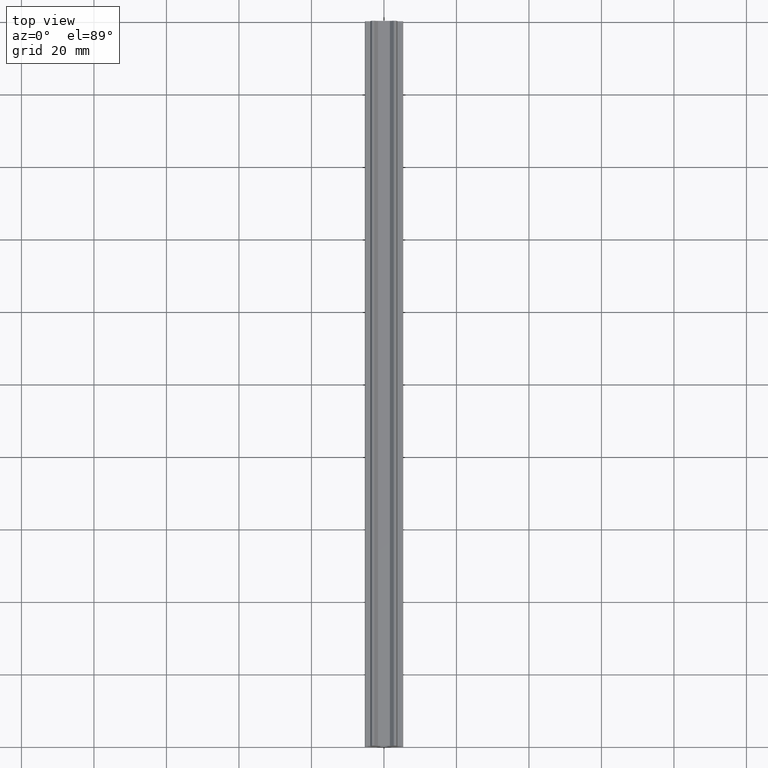
[diagram: clean part render]
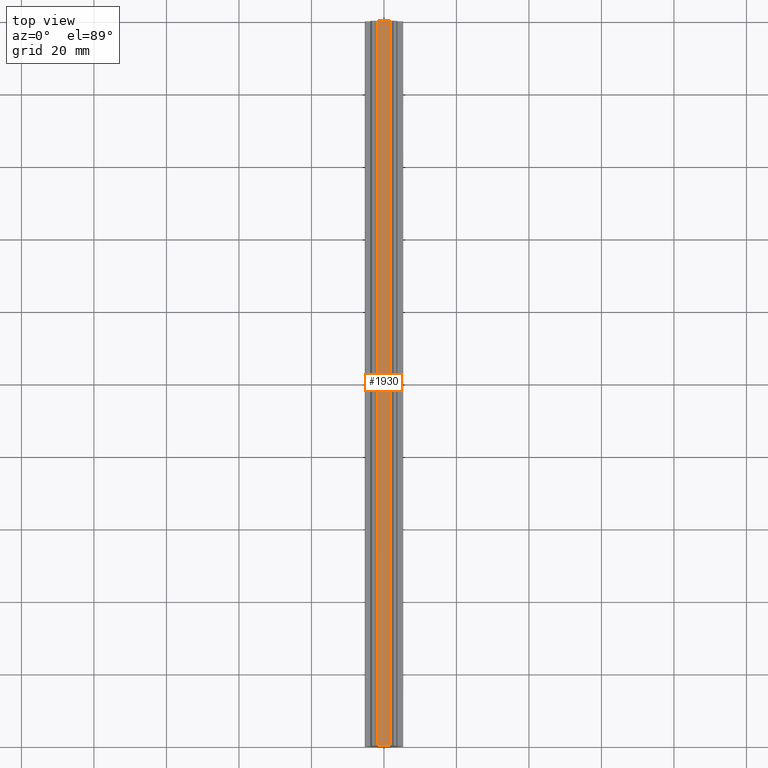
[diagram: same view with one face highlighted and labeled with its STEP entity id]
A machine part, top view. The second image highlights one B-rep face of the part: STEP entity #1930.
In plain terms, the highlighted face is a freeform B-spline surface patch.
Its self-contained STEP definition (entity closure, byte-faithful):
#726=CARTESIAN_POINT('',(1.650000000000000,0.0,0.0));
#727=VERTEX_POINT('',#726);
#733=CARTESIAN_POINT('',(-1.649999999999975,0.0,1.278977E-013));
#734=VERTEX_POINT('',#733);
#735=CARTESIAN_POINT('',(-1.649999999999975,0.0,1.278977E-013));
#736=CARTESIAN_POINT('',(1.650000000000000,0.0,0.0));
#737=QUASI_UNIFORM_CURVE('',1,(#735,#736),.UNSPECIFIED.,.F.,.U.);
#738=EDGE_CURVE('',#734,#727,#737,.T.);
#922=CARTESIAN_POINT('',(-1.649999999999975,200.0,1.278977E-013));
#923=VERTEX_POINT('',#922);
#929=CARTESIAN_POINT('',(1.650000000000000,200.0,0.0));
#930=VERTEX_POINT('',#929);
#931=CARTESIAN_POINT('',(-1.649999999999975,200.0,1.278977E-013));
#932=CARTESIAN_POINT('',(1.650000000000000,200.0,0.0));
#933=QUASI_UNIFORM_CURVE('',1,(#931,#932),.UNSPECIFIED.,.F.,.U.);
#934=EDGE_CURVE('',#923,#930,#933,.T.);
#1811=CARTESIAN_POINT('',(-1.649999999999975,200.0,1.278977E-013));
#1812=CARTESIAN_POINT('',(-1.649999999999975,0.0,1.278977E-013));
#1813=QUASI_UNIFORM_CURVE('',1,(#1811,#1812),.UNSPECIFIED.,.F.,.U.);
#1814=EDGE_CURVE('',#923,#734,#1813,.T.);
#1915=CARTESIAN_POINT('',(1.814834993603959,-9.989999612361194,0.0));
#1916=CARTESIAN_POINT('',(-1.814835082116832,-9.989999612361194,0.0));
#1917=CARTESIAN_POINT('',(1.814834993603959,209.990004976779200,0.0));
#1918=CARTESIAN_POINT('',(-1.814835082116832,209.990004976779200,0.0));
#1919=B_SPLINE_SURFACE_WITH_KNOTS('',1,1,((#1915,#1917),(#1916,#1918)),.UNSPECIFIED.,.F.,.F.,.U.,(2,2),(2,2),(0.0,3.629670075720791),(0.0,219.980004589140410),.UNSPECIFIED.);
#1920=ORIENTED_EDGE('',*,*,#738,.T.);
#1921=CARTESIAN_POINT('',(1.650000000000000,200.0,0.0));
#1922=CARTESIAN_POINT('',(1.650000000000000,0.0,0.0));
#1923=QUASI_UNIFORM_CURVE('',1,(#1921,#1922),.UNSPECIFIED.,.F.,.U.);
#1924=EDGE_CURVE('',#930,#727,#1923,.T.);
#1925=ORIENTED_EDGE('',*,*,#1924,.F.);
#1926=ORIENTED_EDGE('',*,*,#934,.F.);
#1927=ORIENTED_EDGE('',*,*,#1814,.T.);
#1928=EDGE_LOOP('',(#1920,#1925,#1926,#1927));
#1929=FACE_OUTER_BOUND('',#1928,.T.);
#1930=ADVANCED_FACE('',(#1929),#1919,.F.);